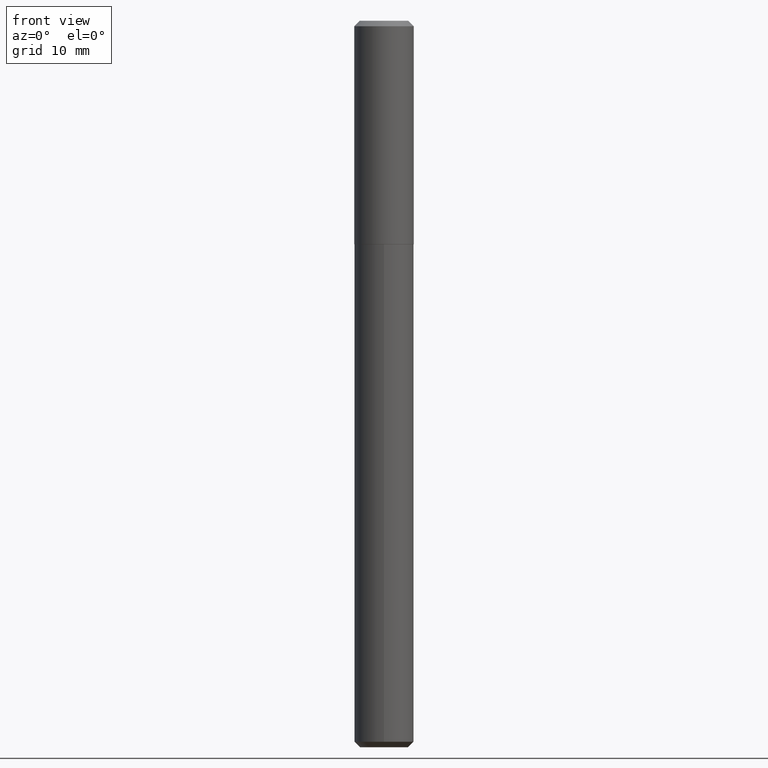
[diagram: clean part render]
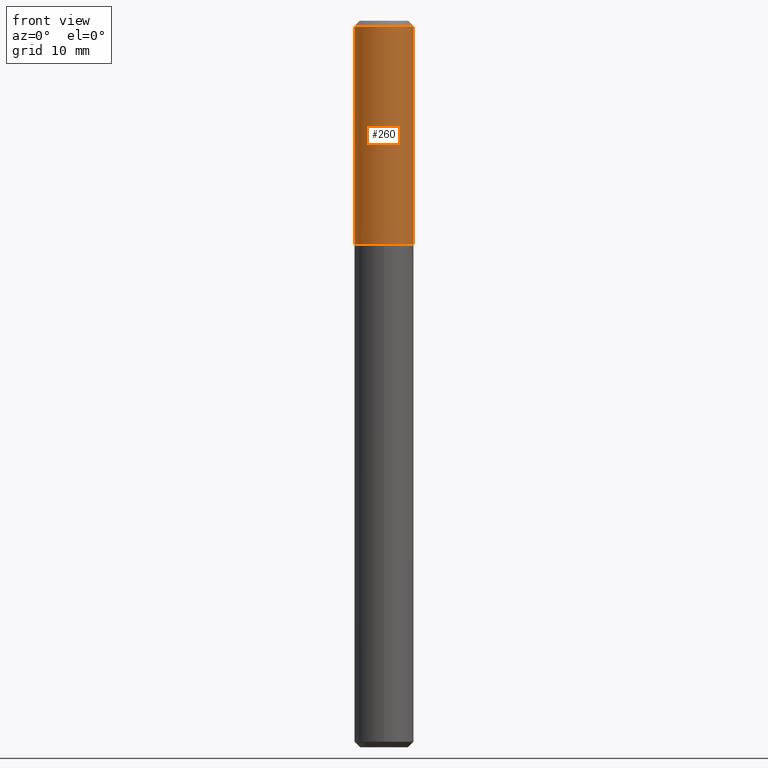
[diagram: same view with one face highlighted and labeled with its STEP entity id]
A machine part, front view. The second image highlights one B-rep face of the part: STEP entity #260.
In plain terms, the highlighted cylindrical surface (edge-blend (fillet) strip) has radius 3.3731 mm, axis along (-0, 0, 1).
Its self-contained STEP definition (entity closure, byte-faithful):
#12 = FACE_OUTER_BOUND ( 'NONE', #333, .T. ) ;
#17 = VERTEX_POINT ( 'NONE', #242 ) ;
#18 = DIRECTION ( 'NONE',  ( -2.445468806185136597E-29, 3.491481338843145583E-15, 1.000000000000000000 ) ) ;
#33 = DIRECTION ( 'NONE',  ( -2.445468806185136877E-29, 3.491481338843145188E-15, 1.000000000000000000 ) ) ;
#35 = EDGE_CURVE ( 'NONE', #399, #17, #335, .T. ) ;
#49 = CARTESIAN_POINT ( 'NONE',  ( 2.444246071782045197E-29, -3.489735598173725657E-15, -0.9995000000000004992 ) ) ;
#63 = DIRECTION ( 'NONE',  ( 1.000000000000000000, -6.982962677686266711E-15, 0.000000000000000000 ) ) ;
#75 = ORIENTED_EDGE ( 'NONE', *, *, #204, .F. ) ;
#96 = CIRCLE ( 'NONE', #103, 0.1328000000000000014 ) ;
#103 = AXIS2_PLACEMENT_3D ( 'NONE', #385, #288, #63 ) ;
#104 = DIRECTION ( 'NONE',  ( -2.445468806185136597E-29, 3.491481338843145583E-15, 1.000000000000000000 ) ) ;
#105 = VERTEX_POINT ( 'NONE', #182 ) ;
#109 = ORIENTED_EDGE ( 'NONE', *, *, #151, .F. ) ;
#136 = AXIS2_PLACEMENT_3D ( 'NONE', #325, #104, #368 ) ;
#139 = EDGE_CURVE ( 'NONE', #17, #398, #414, .T. ) ;
#142 = DIRECTION ( 'NONE',  ( 1.000000000000000000, -6.982962677686265133E-15, 0.000000000000000000 ) ) ;
#149 = VECTOR ( 'NONE', #310, 39.37007874015748143 ) ;
#151 = EDGE_CURVE ( 'NONE', #105, #398, #96, .T. ) ;
#161 = ORIENTED_EDGE ( 'NONE', *, *, #35, .T. ) ;
#182 = CARTESIAN_POINT ( 'NONE',  ( -0.1328000000000000014, -8.449105627329891359E-16, -0.02500000000000016792 ) ) ;
#190 = CARTESIAN_POINT ( 'NONE',  ( 0.1328000000000000569, -9.273374435967366167E-16, 6.475562758257005110E-30 ) ) ;
#204 = EDGE_CURVE ( 'NONE', #399, #105, #249, .T. ) ;
#207 = ORIENTED_EDGE ( 'NONE', *, *, #139, .T. ) ;
#242 = CARTESIAN_POINT ( 'NONE',  ( 0.1328000000000001124, -4.417073041770462668E-15, -0.9995000000000004992 ) ) ;
#249 = LINE ( 'NONE', #356, #149 ) ;
#260 = ADVANCED_FACE ( 'NONE', ( #12 ), #364, .T. ) ;
#263 = VECTOR ( 'NONE', #33, 39.37007874015748143 ) ;
#288 = DIRECTION ( 'NONE',  ( -2.445468806185136597E-29, 3.491481338843145583E-15, 1.000000000000000000 ) ) ;
#310 = DIRECTION ( 'NONE',  ( -2.445468806185136877E-29, 3.491481338843145188E-15, 1.000000000000000000 ) ) ;
#323 = CARTESIAN_POINT ( 'NONE',  ( -0.1328000000000001124, -2.546134845084311614E-15, -0.9995000000000004992 ) ) ;
#325 = CARTESIAN_POINT ( 'NONE',  ( 0.000000000000000000, 0.000000000000000000, 0.000000000000000000 ) ) ;
#333 = EDGE_LOOP ( 'NONE', ( #75, #161, #207, #109 ) ) ;
#335 = CIRCLE ( 'NONE', #373, 0.1328000000000001124 ) ;
#356 = CARTESIAN_POINT ( 'NONE',  ( -0.1328000000000000569, 9.436007530894134510E-16, -6.532345799858516735E-30 ) ) ;
#357 = CARTESIAN_POINT ( 'NONE',  ( 0.1328000000000000014, -1.014624477067815542E-15, -0.02500000000000016792 ) ) ;
#364 = CYLINDRICAL_SURFACE ( 'NONE', #136, 0.1328000000000000569 ) ;
#368 = DIRECTION ( 'NONE',  ( 1.000000000000000000, -6.982962677686266711E-15, 4.876176775795935232E-29 ) ) ;
#373 = AXIS2_PLACEMENT_3D ( 'NONE', #49, #18, #142 ) ;
#385 = CARTESIAN_POINT ( 'NONE',  ( 6.113672015462882830E-31, -8.728703347107923368E-17, -0.02500000000000016792 ) ) ;
#398 = VERTEX_POINT ( 'NONE', #357 ) ;
#399 = VERTEX_POINT ( 'NONE', #323 ) ;
#414 = LINE ( 'NONE', #190, #263 ) ;